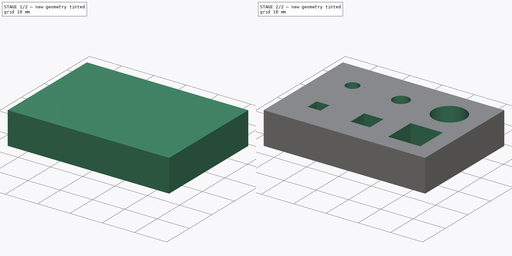
[diagram: build sequence overview — one tinted view per stage of 2, left to right]
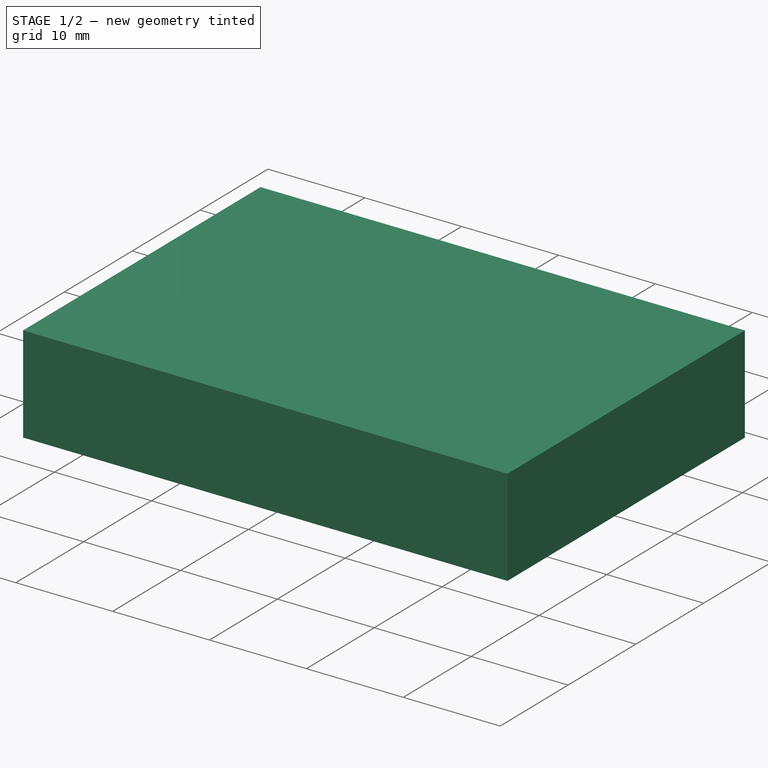
[diagram: stage 1 of 2 — iso view after this stage's code; geometry added in this stage tinted green]
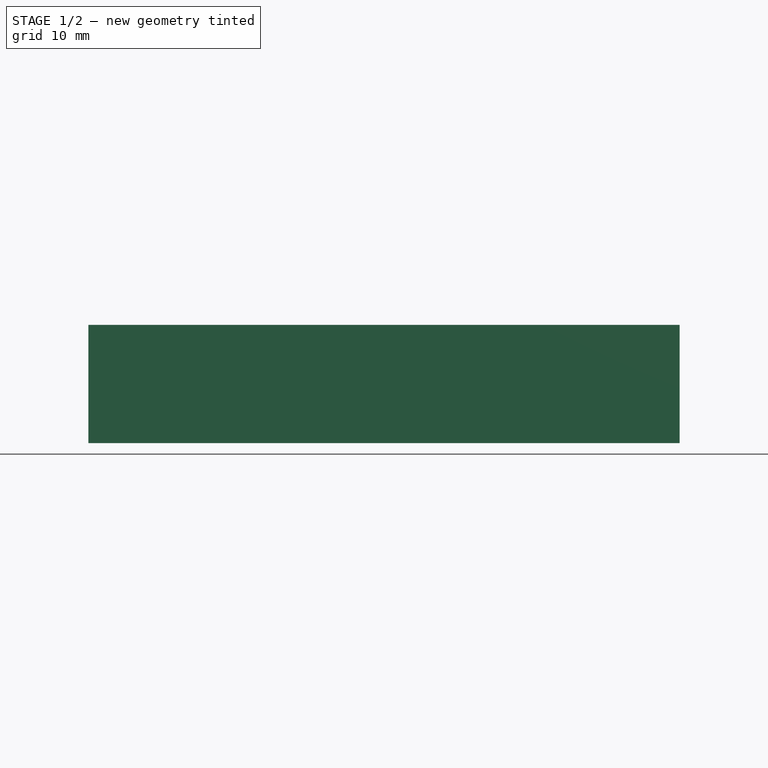
[diagram: stage 1 of 2 — front view after this stage's code; geometry added in this stage tinted green]
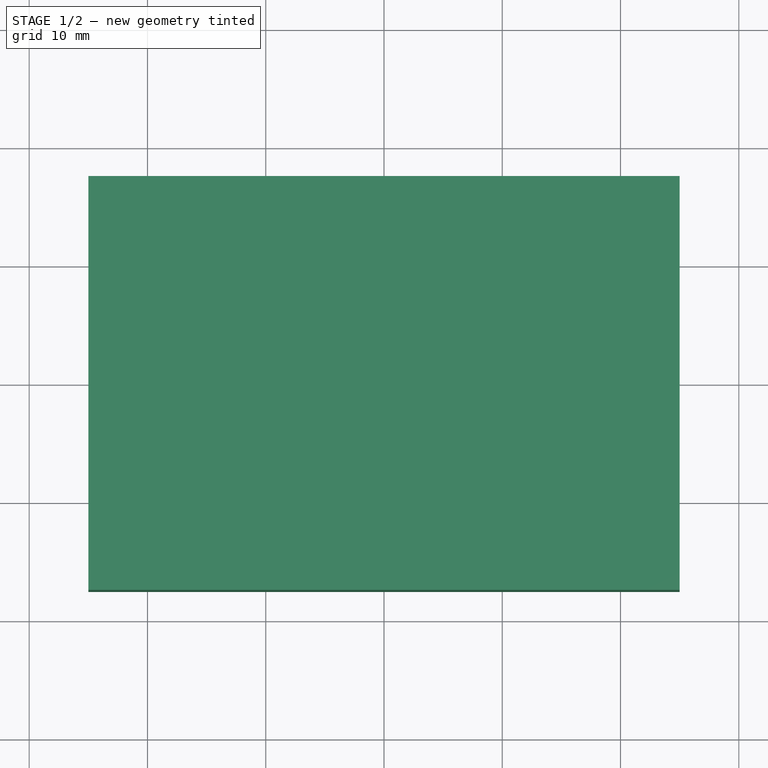
[diagram: stage 1 of 2 — top view after this stage's code; geometry added in this stage tinted green]
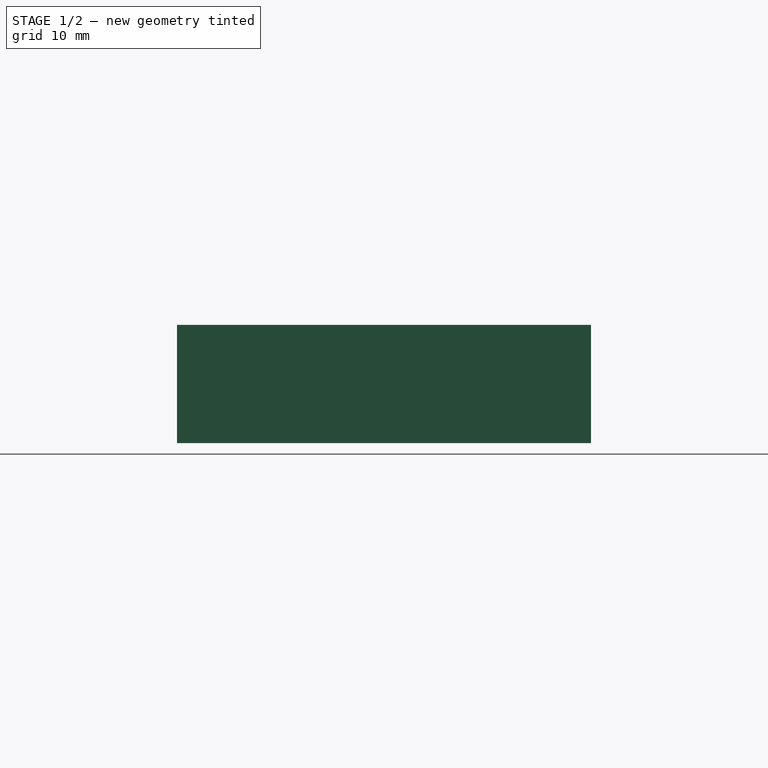
[diagram: stage 1 of 2 — right view after this stage's code; geometry added in this stage tinted green]
FCSTD DOCUMENT  (FreeCAD 1.0R39109 (Git))
Label: hole_tester
License: All rights reserved
LicenseURL: https://en.wikipedia.org/wiki/All_rights_reserved
objects: Sketcher::SketchObject×2, Spreadsheet::Sheet×1, PartDesign::Pad×1, PartDesign::Pocket×1, PartDesign::Body×1
note: 11 computed .brp shape members not serialized (recipe doc carries the construction recipe); baked Part::Feature solids carry a one-line shape summary decoded from their .brp

FEATURE [Spreadsheet::Sheet] Spreadsheet
  cells = A1='Circular hole 1; B1(circle_hole_1)=4; C1='Square hole 1; D1(square_hole_1)=4; A2='Circular hole 2; B2(circle_hole_2)=5; C2='Square hole 2; D2(square_hole_2)=6; A3='Circular hole 3; B3(circle_hole_3)=10; C3='Square hole 3; D3(square_hole_3)=10; A4='Item spacing; B4(spacing)=5; C4='Block thickness; D4(block_z)=10; A6='Calculations; A7='Biggest hole; B7(biggest_hole)==circle_hole_1 > circle_hole_2 ? circle_hole_1 : circle_hole_2 > circle_hole_3 ? (circle_hole_1 > circle_hole_2 ? circle_hole_1 : circle_hole_2) : circle_hole_3; C7='Biggest square; D7(biggest_square)==square_hole_1 > square_hole_2 ? square_hole_1 : square_hole_2 > square_hole_3 ? (square_hole_1 > square_hole_2 ? square_hole_1 : square_hole_2) : square_hole_3; E7='Block X; F7(block_x)==total_hole_x > total_square_x ? total_hole_x : total_square_x; G7='Construction X; H7(construct_x)==biggest_item + biggest_item + spacing * 2; A8='total hole width; B8(total_hole_x)==spacing + biggest_hole + spacing + biggest_hole + spacing + biggest_hole + spacing; C8='total square width; D8(total_square_x)==spacing + biggest_square + spacing + biggest_square + spacing + biggest_square + spacing; E8='Block Y; F8(block_y)==biggest_hole + biggest_square + spacing * 3; G8='Construction Y; H8(construct_y)==biggest_hole / 2 + biggest_square / 2 + spacing; A9='biggest item; B9(biggest_item)==biggest_hole > biggest_square ? biggest_hole : biggest_square
FEATURE [Sketcher::SketchObject] Sketch
  ArcFitTolerance = 1e-06
  AttachmentSupport = -> [XY_Plane]
  FullyConstrained = true
  MakeInternals = false
  MapMode = 5
  expr: Constraints[10] = Spreadsheet.block_y
  expr: Constraints[9] = Spreadsheet.block_x
  sketch-geometry (4):
    g0: LineSegment StartX=-25 StartY=17.5 StartZ=0 EndX=-25 EndY=-17.5 EndZ=0
    g1: LineSegment StartX=-25 StartY=-17.5 StartZ=0 EndX=25 EndY=-17.5 EndZ=0
    g2: LineSegment StartX=25 StartY=-17.5 StartZ=0 EndX=25 EndY=17.5 EndZ=0
    g3: LineSegment StartX=25 StartY=17.5 StartZ=0 EndX=-25 EndY=17.5 EndZ=0
  constraints (11):
    c: Coincident(g0,g1)
    c: Coincident(g1,g2)
    c: Coincident(g2,g3)
    c: Coincident(g3,g0)
    c: Vertical(g0)
    c: Vertical(g2)
    c: Horizontal(g1)
    c: Horizontal(g3)
    c: Symmetric(g2,g0,g-1)
    c: DistanceX(g1,g1) = 50
    c: DistanceY(g2,g2) = 35
FEATURE [PartDesign::Pad] Pad  label="block"
  Direction = (0,0,1)
  Length = 10
  Length2 = 10
  Profile = -> Sketch
  ReferenceAxis = -> Sketch [N_Axis]
  Refine = true
  Suppressed = false
  Type = 0
  expr: Length = Spreadsheet.block_z
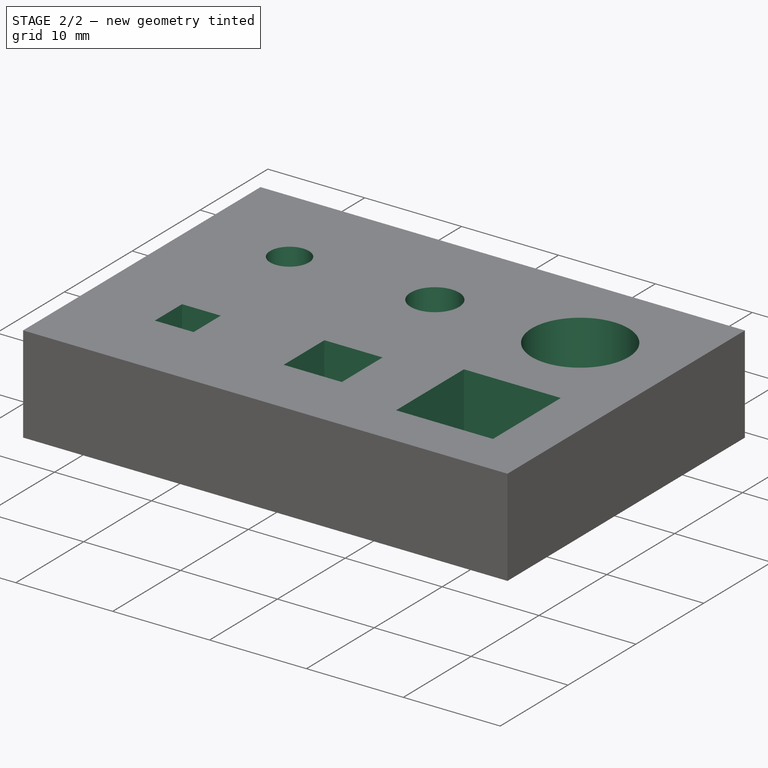
[diagram: stage 2 of 2 — iso view after this stage's code; geometry added in this stage tinted green]
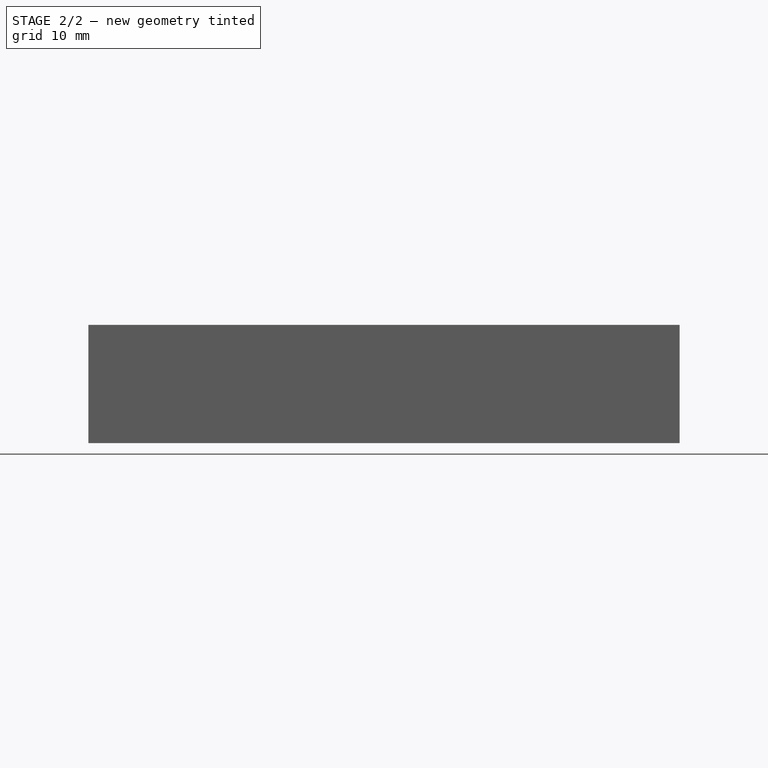
[diagram: stage 2 of 2 — front view after this stage's code; geometry added in this stage tinted green]
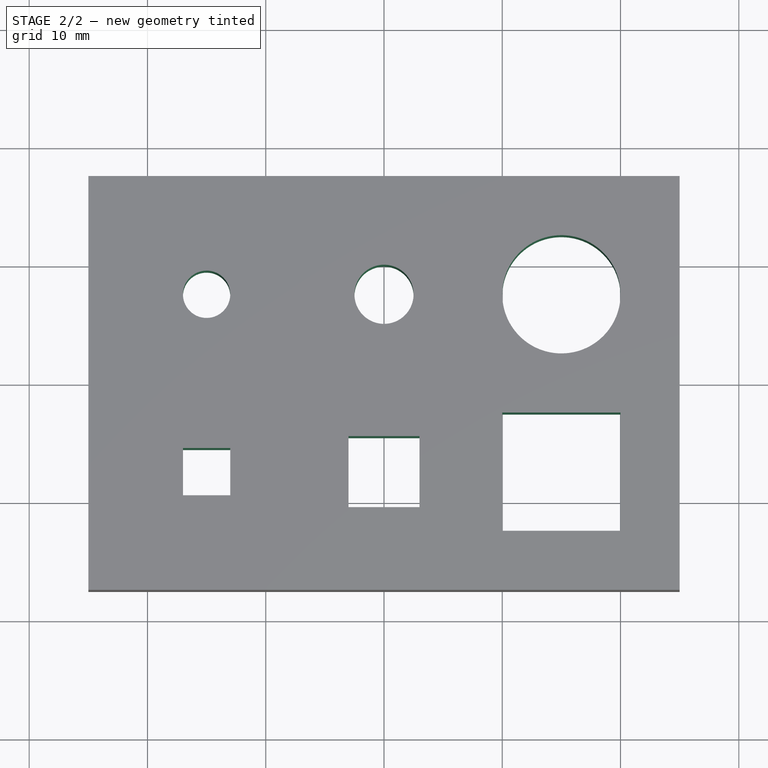
[diagram: stage 2 of 2 — top view after this stage's code; geometry added in this stage tinted green]
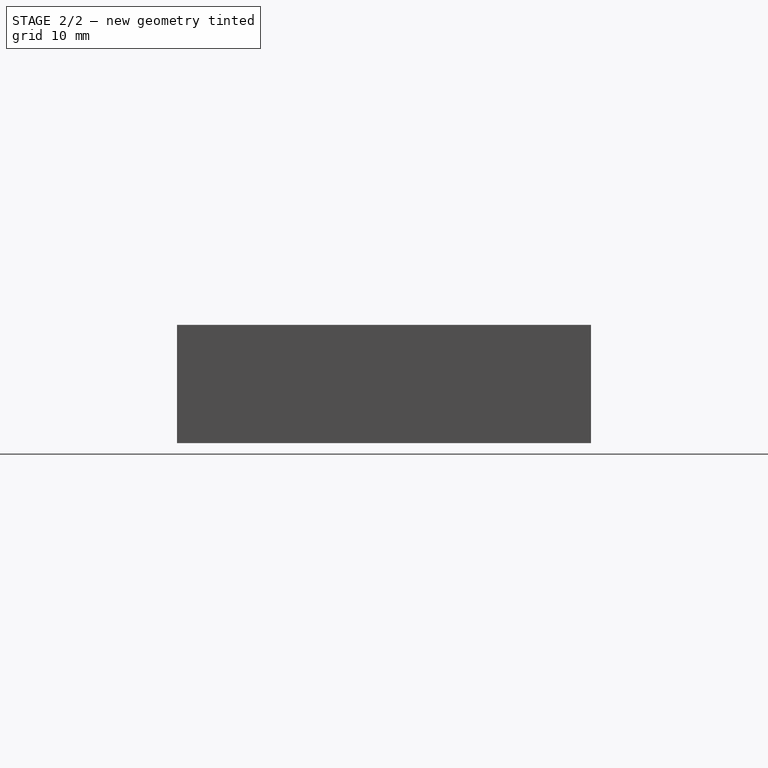
[diagram: stage 2 of 2 — right view after this stage's code; geometry added in this stage tinted green]
FEATURE [Sketcher::SketchObject] Sketch001
  ArcFitTolerance = 1e-06
  AttachmentSupport = -> [Pad]
  FullyConstrained = true
  MakeInternals = false
  MapMode = 5
  Placement = pos=(0,0,10) rot=(0,0,1;0rad)
  expr: Constraints[11] = Spreadsheet.construct_x
  expr: Constraints[12] = Spreadsheet.construct_y
  expr: Constraints[43] = Spreadsheet.circle_hole_1
  expr: Constraints[44] = Spreadsheet.circle_hole_2
  expr: Constraints[45] = Spreadsheet.circle_hole_3
  expr: Constraints[49] = Spreadsheet.square_hole_1
  expr: Constraints[50] = Spreadsheet.square_hole_2
  expr: Constraints[51] = Spreadsheet.square_hole_3
  sketch-geometry (21):
    g0: LineSegment [constr] StartX=-15 StartY=7.5 StartZ=0 EndX=-15 EndY=-7.5 EndZ=0
    g1: LineSegment [constr] StartX=-15 StartY=-7.5 StartZ=0 EndX=15 EndY=-7.5 EndZ=0
    g2: LineSegment [constr] StartX=15 StartY=-7.5 StartZ=0 EndX=15 EndY=7.5 EndZ=0
    g3: LineSegment [constr] StartX=15 StartY=7.5 StartZ=0 EndX=-15 EndY=7.5 EndZ=0
    g4: GeomPoint [constr] X=-2e-16 Y=7.5 Z=0
    g5: GeomPoint [constr] X=3e-16 Y=-7.5 Z=0
    g6: Circle CenterX=-15 CenterY=7.5 CenterZ=0 NormalX=0 NormalY=0 NormalZ=1 AngleXU=0 Radius=2
    g7: Circle CenterX=-2e-16 CenterY=7.5 CenterZ=0 NormalX=0 NormalY=0 NormalZ=1 AngleXU=0 Radius=2.5
    g8: Circle CenterX=15 CenterY=7.5 CenterZ=0 NormalX=0 NormalY=0 NormalZ=1 AngleXU=0 Radius=5
    g9: LineSegment StartX=-17 StartY=-5.5 StartZ=0 EndX=-17 EndY=-9.5 EndZ=0
    g10: LineSegment StartX=-17 StartY=-9.5 StartZ=0 EndX=-13 EndY=-9.5 EndZ=0
    g11: LineSegment StartX=-13 StartY=-9.5 StartZ=0 EndX=-13 EndY=-5.5 EndZ=0
    g12: LineSegment StartX=-13 StartY=-5.5 StartZ=0 EndX=-17 EndY=-5.5 EndZ=0
    g13: LineSegment StartX=-3 StartY=-4.5 StartZ=0 EndX=-3 EndY=-10.5 EndZ=0
    g14: LineSegment StartX=-3 StartY=-10.5 StartZ=0 EndX=3 EndY=-10.5 EndZ=0
    g15: LineSegment StartX=3 StartY=-10.5 StartZ=0 EndX=3 EndY=-4.5 EndZ=0
    g16: LineSegment StartX=3 StartY=-4.5 StartZ=0 EndX=-3 EndY=-4.5 EndZ=0
    g17: LineSegment StartX=10 StartY=-2.5 StartZ=0 EndX=10 EndY=-12.5 EndZ=0
    g18: LineSegment StartX=10 StartY=-12.5 StartZ=0 EndX=20 EndY=-12.5 EndZ=0
    g19: LineSegment StartX=20 StartY=-12.5 StartZ=0 EndX=20 EndY=-2.5 EndZ=0
    g20: LineSegment StartX=20 StartY=-2.5 StartZ=0 EndX=10 EndY=-2.5 EndZ=0
  constraints (52):
    c: Coincident(g0,g1)
    c: Coincident(g1,g2)
    c: Coincident(g2,g3)
    c: Coincident(g3,g0)
    c: Vertical(g0)
    c: Vertical(g2)
    c: Horizontal(g1)
    c: Horizontal(g3)
    c: Symmetric(g2,g0,g-1)
    c: Symmetric(g3,g3,g4)
    c: Symmetric(g1,g1,g5)
    c: DistanceX(g3,g3) = 30
    c: DistanceY(g2,g2) = 15
    c: Coincident(g6,g0)
    c: Coincident(g7,g4)
    c: Coincident(g8,g2)
    c: Coincident(g9,g10)
    c: Coincident(g10,g11)
    c: Coincident(g11,g12)
    c: Coincident(g12,g9)
    c: Vertical(g9)
    c: Vertical(g11)
    c: Horizontal(g10)
    c: Horizontal(g12)
    c: Coincident(g13,g14)
    c: Coincident(g14,g15)
    c: Coincident(g15,g16)
    c: Coincident(g16,g13)
    c: Vertical(g13)
    c: Vertical(g15)
    c: Horizontal(g14)
    c: Horizontal(g16)
    c: Coincident(g17,g18)
    c: Coincident(g18,g19)
    c: Coincident(g19,g20)
    c: Coincident(g20,g17)
    c: Vertical(g17)
    c: Vertical(g19)
    c: Horizontal(g18)
    c: Horizontal(g20)
    c: Symmetric(g11,g9,g0)
    c: Symmetric(g15,g13,g5)
    c: Symmetric(g19,g17,g1)
    c: Diameter(g6) = 4
    c: Diameter(g7) = 5
    c: Diameter(g8) = 10
    c: Equal(g20,g17)
    c: Equal(g16,g13)
    c: Equal(g12,g9)
    c: DistanceX(g12,g12) = 4
    c: DistanceX(g16,g16) = 6
    c: DistanceX(g20,g20) = 10
FEATURE [PartDesign::Pocket] Pocket  label="test_holes"
  BaseFeature = -> Pad
  Direction = (0,0,-1)
  Length = 5
  Length2 = 5
  Profile = -> Sketch001
  ReferenceAxis = -> Sketch001 [N_Axis]
  Refine = true
  Suppressed = false
  Type = 1
FEATURE [PartDesign::Body] Body
  AllowCompound = false
  Group = -> [Sketch,Pad,Sketch001,Pocket]
  Origin = -> Origin
  Tip = -> Pocket
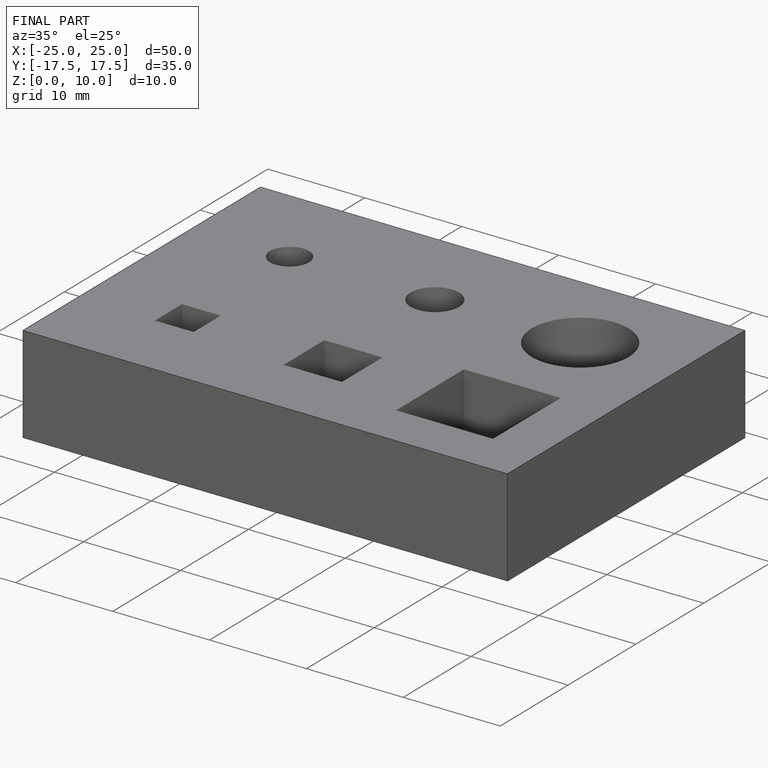
[diagram: finished part — iso view with bounding-box wireframe]
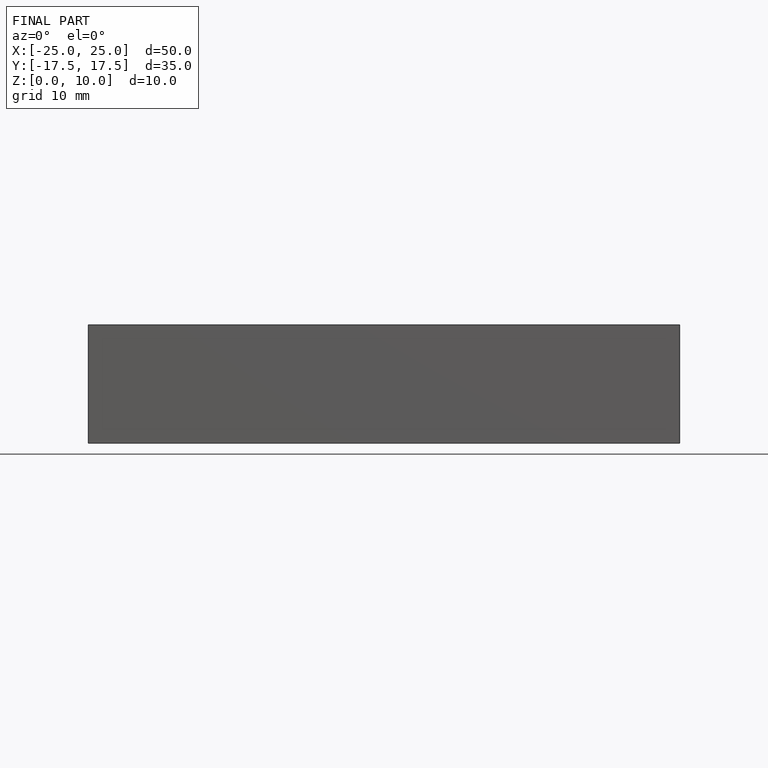
[diagram: finished part — front view with bounding-box wireframe]
